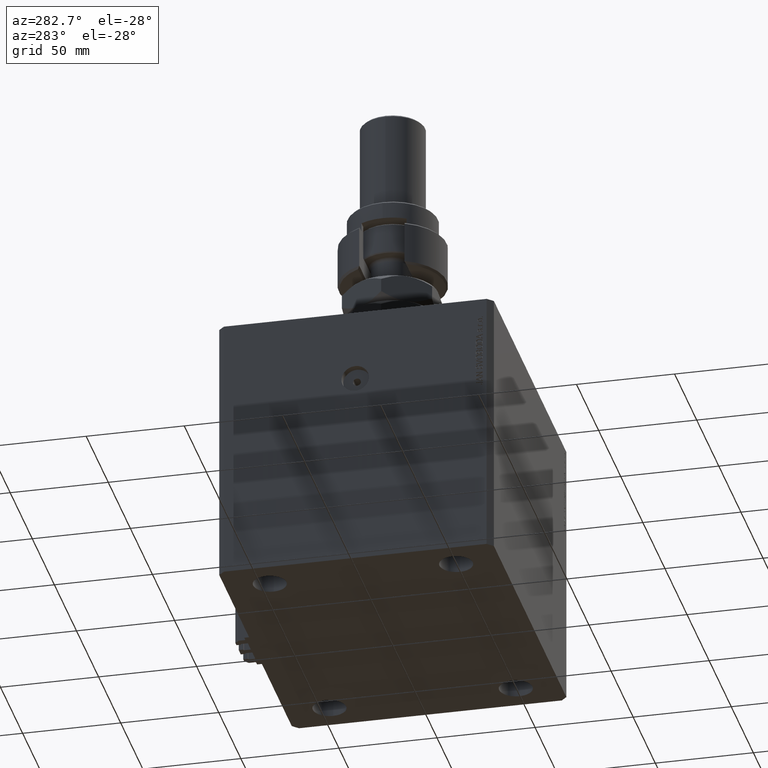
[diagram: clean part render]
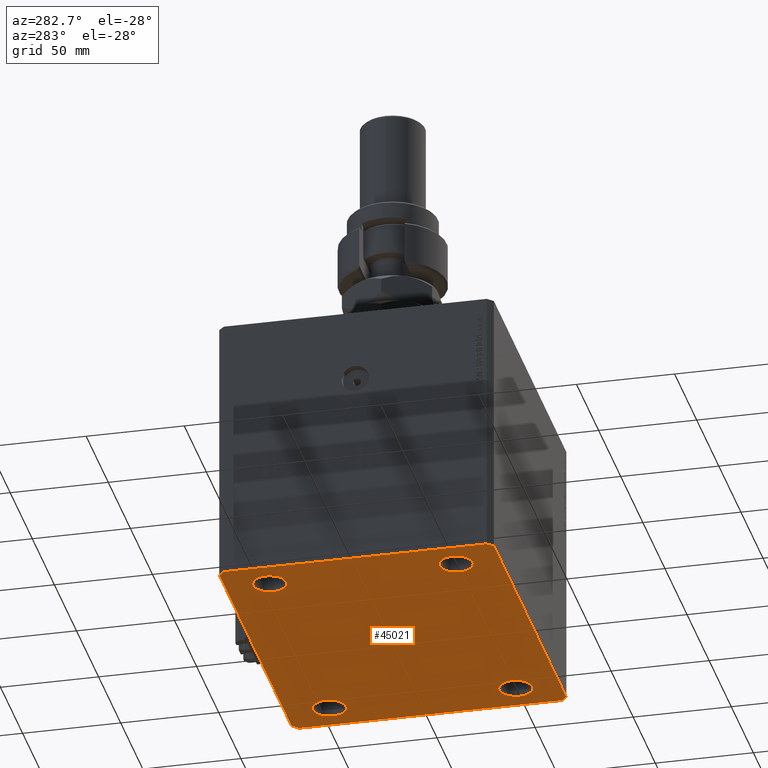
[diagram: same view with one face highlighted and labeled with its STEP entity id]
A machine part, auxiliary view. The second image highlights one B-rep face of the part: STEP entity #45021.
In plain terms, the highlighted planar face has unit normal (0, 0, 1).
Its self-contained STEP definition (entity closure, byte-faithful):
#94 = DIRECTION ( 'NONE',  ( 1.000000000000000000, 0.000000000000000000, 0.000000000000000000 ) ) ;
#184 = DIRECTION ( 'NONE',  ( -0.000000000000000000, -0.000000000000000000, -1.000000000000000000 ) ) ;
#205 = DIRECTION ( 'NONE',  ( 1.000000000000000000, 0.000000000000000000, -0.000000000000000000 ) ) ;
#212 = EDGE_CURVE ( 'NONE', #9756, #42735, #18616, .T. ) ;
#366 = LINE ( 'NONE', #7957, #19293 ) ;
#680 = EDGE_CURVE ( 'NONE', #19652, #3379, #38179, .T. ) ;
#904 = CARTESIAN_POINT ( 'NONE',  ( -85.00000000000001421, 67.00000000000001421, -138.0000000000000000 ) ) ;
#1010 = EDGE_LOOP ( 'NONE', ( #1245, #30901 ) ) ;
#1103 = AXIS2_PLACEMENT_3D ( 'NONE', #47919, #32468, #5319 ) ;
#1245 = ORIENTED_EDGE ( 'NONE', *, *, #17343, .F. ) ;
#1267 = CARTESIAN_POINT ( 'NONE',  ( -82.00000000000000000, -70.00000000000000000, -138.0000000000000000 ) ) ;
#3379 = VERTEX_POINT ( 'NONE', #10791 ) ;
#3997 = FACE_BOUND ( 'NONE', #34152, .T. ) ;
#3998 = VERTEX_POINT ( 'NONE', #37208 ) ;
#3999 = ORIENTED_EDGE ( 'NONE', *, *, #47683, .F. ) ;
#4772 = EDGE_CURVE ( 'NONE', #33027, #27202, #36026, .T. ) ;
#5319 = DIRECTION ( 'NONE',  ( 1.000000000000000000, 0.000000000000000000, 0.000000000000000000 ) ) ;
#6024 = DIRECTION ( 'NONE',  ( -0.000000000000000000, -0.000000000000000000, -1.000000000000000000 ) ) ;
#6276 = DIRECTION ( 'NONE',  ( 0.7071067811865474617, 0.7071067811865474617, 0.000000000000000000 ) ) ;
#6918 = VECTOR ( 'NONE', #38975, 1000.000000000000114 ) ;
#7631 = CARTESIAN_POINT ( 'NONE',  ( 85.00000000000052580, 66.99999999999995737, -138.0000000000000000 ) ) ;
#7767 = ORIENTED_EDGE ( 'NONE', *, *, #35094, .F. ) ;
#7957 = CARTESIAN_POINT ( 'NONE',  ( -85.00000000000000000, -67.00000000000000000, -138.0000000000000000 ) ) ;
#7981 = EDGE_LOOP ( 'NONE', ( #36923, #32465 ) ) ;
#8175 = ORIENTED_EDGE ( 'NONE', *, *, #29346, .F. ) ;
#8740 = AXIS2_PLACEMENT_3D ( 'NONE', #43791, #40938, #9036 ) ;
#9036 = DIRECTION ( 'NONE',  ( 1.000000000000000000, 0.000000000000000000, 0.000000000000000000 ) ) ;
#9756 = VERTEX_POINT ( 'NONE', #49040 ) ;
#9839 = CARTESIAN_POINT ( 'NONE',  ( -75.99999999999998579, -47.50000000000001421, -138.0000000000000000 ) ) ;
#10791 = CARTESIAN_POINT ( 'NONE',  ( 85.00000000000052580, 66.99999999999995737, -138.0000000000000000 ) ) ;
#11556 = ORIENTED_EDGE ( 'NONE', *, *, #32855, .F. ) ;
#11717 = VECTOR ( 'NONE', #23912, 1000.000000000000000 ) ;
#11814 = CARTESIAN_POINT ( 'NONE',  ( -82.00000000000000000, 70.00000000000000000, -138.0000000000000000 ) ) ;
#12760 = EDGE_CURVE ( 'NONE', #30491, #44057, #17434, .T. ) ;
#12777 = CIRCLE ( 'NONE', #8740, 8.499999999999992895 ) ;
#13010 = EDGE_CURVE ( 'NONE', #36146, #28998, #40533, .T. ) ;
#13511 = ORIENTED_EDGE ( 'NONE', *, *, #4772, .F. ) ;
#13659 = ORIENTED_EDGE ( 'NONE', *, *, #31521, .F. ) ;
#14003 = VERTEX_POINT ( 'NONE', #39237 ) ;
#14373 = CARTESIAN_POINT ( 'NONE',  ( 67.50000000000000000, 47.49999999999999289, -138.0000000000000000 ) ) ;
#14651 = CARTESIAN_POINT ( 'NONE',  ( 59.00000000000000000, -47.50000000000001421, -138.0000000000000000 ) ) ;
#14835 = CARTESIAN_POINT ( 'NONE',  ( -67.49999999999998579, -47.50000000000001421, -138.0000000000000000 ) ) ;
#14839 = CIRCLE ( 'NONE', #1103, 8.499999999999992895 ) ;
#15142 = FACE_BOUND ( 'NONE', #1010, .T. ) ;
#15216 = EDGE_CURVE ( 'NONE', #17123, #16020, #12777, .T. ) ;
#15328 = DIRECTION ( 'NONE',  ( -0.000000000000000000, -0.000000000000000000, -1.000000000000000000 ) ) ;
#16020 = VERTEX_POINT ( 'NONE', #30913 ) ;
#16311 = EDGE_CURVE ( 'NONE', #14003, #33027, #366, .T. ) ;
#17123 = VERTEX_POINT ( 'NONE', #9839 ) ;
#17343 = EDGE_CURVE ( 'NONE', #42735, #9756, #32347, .T. ) ;
#17434 = CIRCLE ( 'NONE', #33663, 8.499999999999992895 ) ;
#17677 = DIRECTION ( 'NONE',  ( 1.000000000000000000, 0.000000000000000000, 0.000000000000000000 ) ) ;
#18298 = LINE ( 'NONE', #7631, #47171 ) ;
#18407 = DIRECTION ( 'NONE',  ( 1.000000000000000000, 0.000000000000000000, 0.000000000000000000 ) ) ;
#18616 = CIRCLE ( 'NONE', #29115, 8.499999999999992895 ) ;
#19024 = ORIENTED_EDGE ( 'NONE', *, *, #13010, .F. ) ;
#19293 = VECTOR ( 'NONE', #36125, 1000.000000000000114 ) ;
#19458 = DIRECTION ( 'NONE',  ( 0.000000000000000000, 0.000000000000000000, 1.000000000000000000 ) ) ;
#19616 = VECTOR ( 'NONE', #31958, 1000.000000000000000 ) ;
#19624 = CARTESIAN_POINT ( 'NONE',  ( 85.00000000000001421, -67.00000000000000000, -138.0000000000000000 ) ) ;
#19652 = VERTEX_POINT ( 'NONE', #38496 ) ;
#19778 = VERTEX_POINT ( 'NONE', #39248 ) ;
#19878 = DIRECTION ( 'NONE',  ( 3.728360903591945148E-15, 1.000000000000000000, 0.000000000000000000 ) ) ;
#20242 = CARTESIAN_POINT ( 'NONE',  ( -82.00000000000000000, 70.00000000000000000, -138.0000000000000000 ) ) ;
#21330 = CARTESIAN_POINT ( 'NONE',  ( -82.00000000000000000, -70.00000000000000000, -138.0000000000000000 ) ) ;
#22517 = AXIS2_PLACEMENT_3D ( 'NONE', #46349, #19458, #205 ) ;
#22579 = EDGE_CURVE ( 'NONE', #3998, #32003, #29899, .T. ) ;
#23828 = CIRCLE ( 'NONE', #31107, 8.499999999999992895 ) ;
#23912 = DIRECTION ( 'NONE',  ( -1.000000000000000000, 0.000000000000000000, 0.000000000000000000 ) ) ;
#24801 = CIRCLE ( 'NONE', #44240, 8.500000000000007105 ) ;
#25474 = EDGE_LOOP ( 'NONE', ( #38423, #13659 ) ) ;
#26429 = DIRECTION ( 'NONE',  ( 1.000000000000000000, 0.000000000000000000, 0.000000000000000000 ) ) ;
#27202 = VERTEX_POINT ( 'NONE', #43736 ) ;
#28404 = CARTESIAN_POINT ( 'NONE',  ( -59.00000000000001421, 47.50000000000000000, -138.0000000000000000 ) ) ;
#28998 = VERTEX_POINT ( 'NONE', #30776 ) ;
#29115 = AXIS2_PLACEMENT_3D ( 'NONE', #34561, #38600, #26429 ) ;
#29346 = EDGE_CURVE ( 'NONE', #3379, #19778, #18298, .T. ) ;
#29899 = CIRCLE ( 'NONE', #33979, 8.500000000000007105 ) ;
#29922 = CARTESIAN_POINT ( 'NONE',  ( 67.49999999999998579, -47.50000000000001421, -138.0000000000000000 ) ) ;
#30358 = LINE ( 'NONE', #37486, #43661 ) ;
#30491 = VERTEX_POINT ( 'NONE', #33541 ) ;
#30573 = LINE ( 'NONE', #904, #42004 ) ;
#30776 = CARTESIAN_POINT ( 'NONE',  ( -85.00000000000001421, 67.00000000000001421, -138.0000000000000000 ) ) ;
#30885 = PLANE ( 'NONE',  #22517 ) ;
#30901 = ORIENTED_EDGE ( 'NONE', *, *, #212, .F. ) ;
#30913 = CARTESIAN_POINT ( 'NONE',  ( -59.00000000000000000, -47.50000000000001421, -138.0000000000000000 ) ) ;
#30919 = DIRECTION ( 'NONE',  ( 1.000000000000000000, 0.000000000000000000, 0.000000000000000000 ) ) ;
#31107 = AXIS2_PLACEMENT_3D ( 'NONE', #14835, #15328, #18407 ) ;
#31521 = EDGE_CURVE ( 'NONE', #44057, #30491, #14839, .T. ) ;
#31707 = ORIENTED_EDGE ( 'NONE', *, *, #15216, .F. ) ;
#31803 = VECTOR ( 'NONE', #19878, 1000.000000000000000 ) ;
#31958 = DIRECTION ( 'NONE',  ( 1.000000000000000000, 0.000000000000000000, 0.000000000000000000 ) ) ;
#32003 = VERTEX_POINT ( 'NONE', #42761 ) ;
#32347 = CIRCLE ( 'NONE', #48522, 8.499999999999992895 ) ;
#32465 = ORIENTED_EDGE ( 'NONE', *, *, #22579, .F. ) ;
#32468 = DIRECTION ( 'NONE',  ( -0.000000000000000000, -0.000000000000000000, -1.000000000000000000 ) ) ;
#32855 = EDGE_CURVE ( 'NONE', #16020, #17123, #23828, .T. ) ;
#33027 = VERTEX_POINT ( 'NONE', #21330 ) ;
#33541 = CARTESIAN_POINT ( 'NONE',  ( 75.99999999999998579, -47.50000000000001421, -138.0000000000000000 ) ) ;
#33663 = AXIS2_PLACEMENT_3D ( 'NONE', #29922, #49690, #30919 ) ;
#33979 = AXIS2_PLACEMENT_3D ( 'NONE', #14373, #6024, #17677 ) ;
#34152 = EDGE_LOOP ( 'NONE', ( #11556, #31707 ) ) ;
#34561 = CARTESIAN_POINT ( 'NONE',  ( -67.50000000000000000, 47.50000000000000000, -138.0000000000000000 ) ) ;
#34853 = DIRECTION ( 'NONE',  ( -0.000000000000000000, -0.000000000000000000, -1.000000000000000000 ) ) ;
#34963 = FACE_BOUND ( 'NONE', #7981, .T. ) ;
#35094 = EDGE_CURVE ( 'NONE', #19778, #36146, #43196, .T. ) ;
#36026 = LINE ( 'NONE', #1267, #19616 ) ;
#36125 = DIRECTION ( 'NONE',  ( 0.7071067811865474617, -0.7071067811865474617, 0.000000000000000000 ) ) ;
#36146 = VERTEX_POINT ( 'NONE', #20242 ) ;
#36418 = ORIENTED_EDGE ( 'NONE', *, *, #16311, .F. ) ;
#36923 = ORIENTED_EDGE ( 'NONE', *, *, #41410, .F. ) ;
#37208 = CARTESIAN_POINT ( 'NONE',  ( 59.00000000000000000, 47.49999999999999289, -138.0000000000000000 ) ) ;
#37321 = ORIENTED_EDGE ( 'NONE', *, *, #680, .F. ) ;
#37346 = DIRECTION ( 'NONE',  ( -0.7071067811865361374, 0.7071067811865588970, 0.000000000000000000 ) ) ;
#37486 = CARTESIAN_POINT ( 'NONE',  ( 82.00000000000001421, -70.00000000000000000, -138.0000000000000000 ) ) ;
#38179 = LINE ( 'NONE', #19624, #31803 ) ;
#38423 = ORIENTED_EDGE ( 'NONE', *, *, #12760, .F. ) ;
#38496 = CARTESIAN_POINT ( 'NONE',  ( 85.00000000000001421, -67.00000000000000000, -138.0000000000000000 ) ) ;
#38600 = DIRECTION ( 'NONE',  ( -0.000000000000000000, -0.000000000000000000, -1.000000000000000000 ) ) ;
#38975 = DIRECTION ( 'NONE',  ( -0.7071067811865507924, -0.7071067811865441310, 0.000000000000000000 ) ) ;
#38987 = CARTESIAN_POINT ( 'NONE',  ( -67.50000000000000000, 47.50000000000000000, -138.0000000000000000 ) ) ;
#39237 = CARTESIAN_POINT ( 'NONE',  ( -85.00000000000000000, -67.00000000000000000, -138.0000000000000000 ) ) ;
#39248 = CARTESIAN_POINT ( 'NONE',  ( 82.00000000000056843, 70.00000000000000000, -138.0000000000000000 ) ) ;
#40533 = LINE ( 'NONE', #11814, #6918 ) ;
#40938 = DIRECTION ( 'NONE',  ( -0.000000000000000000, -0.000000000000000000, -1.000000000000000000 ) ) ;
#41410 = EDGE_CURVE ( 'NONE', #32003, #3998, #24801, .T. ) ;
#41814 = FACE_OUTER_BOUND ( 'NONE', #47108, .T. ) ;
#42004 = VECTOR ( 'NONE', #47045, 1000.000000000000000 ) ;
#42693 = CARTESIAN_POINT ( 'NONE',  ( 67.50000000000000000, 47.49999999999999289, -138.0000000000000000 ) ) ;
#42735 = VERTEX_POINT ( 'NONE', #28404 ) ;
#42761 = CARTESIAN_POINT ( 'NONE',  ( 76.00000000000001421, 47.49999999999999289, -138.0000000000000000 ) ) ;
#43196 = LINE ( 'NONE', #43936, #11717 ) ;
#43661 = VECTOR ( 'NONE', #6276, 1000.000000000000114 ) ;
#43736 = CARTESIAN_POINT ( 'NONE',  ( 82.00000000000001421, -70.00000000000000000, -138.0000000000000000 ) ) ;
#43791 = CARTESIAN_POINT ( 'NONE',  ( -67.49999999999998579, -47.50000000000001421, -138.0000000000000000 ) ) ;
#43936 = CARTESIAN_POINT ( 'NONE',  ( 82.00000000000056843, 70.00000000000000000, -138.0000000000000000 ) ) ;
#44057 = VERTEX_POINT ( 'NONE', #14651 ) ;
#44240 = AXIS2_PLACEMENT_3D ( 'NONE', #42693, #34853, #94 ) ;
#45021 = ADVANCED_FACE ( 'NONE', ( #3997, #49411, #34963, #15142, #41814 ), #30885, .F. ) ;
#46315 = EDGE_CURVE ( 'NONE', #28998, #14003, #30573, .T. ) ;
#46349 = CARTESIAN_POINT ( 'NONE',  ( 0.000000000000000000, 0.000000000000000000, -138.0000000000000000 ) ) ;
#47045 = DIRECTION ( 'NONE',  ( 1.035655806553317576E-16, -1.000000000000000000, 0.000000000000000000 ) ) ;
#47108 = EDGE_LOOP ( 'NONE', ( #7767, #8175, #37321, #3999, #13511, #36418, #47654, #19024 ) ) ;
#47171 = VECTOR ( 'NONE', #37346, 1000.000000000000114 ) ;
#47654 = ORIENTED_EDGE ( 'NONE', *, *, #46315, .F. ) ;
#47683 = EDGE_CURVE ( 'NONE', #27202, #19652, #30358, .T. ) ;
#47919 = CARTESIAN_POINT ( 'NONE',  ( 67.49999999999998579, -47.50000000000001421, -138.0000000000000000 ) ) ;
#48522 = AXIS2_PLACEMENT_3D ( 'NONE', #38987, #184, #49885 ) ;
#49040 = CARTESIAN_POINT ( 'NONE',  ( -76.00000000000000000, 47.50000000000000000, -138.0000000000000000 ) ) ;
#49411 = FACE_BOUND ( 'NONE', #25474, .T. ) ;
#49690 = DIRECTION ( 'NONE',  ( -0.000000000000000000, -0.000000000000000000, -1.000000000000000000 ) ) ;
#49885 = DIRECTION ( 'NONE',  ( 1.000000000000000000, 0.000000000000000000, 0.000000000000000000 ) ) ;